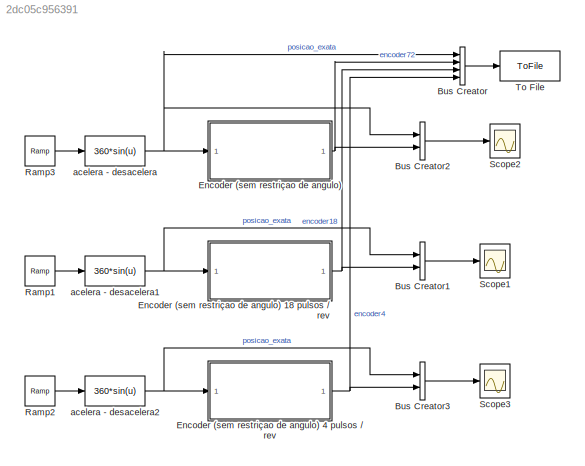
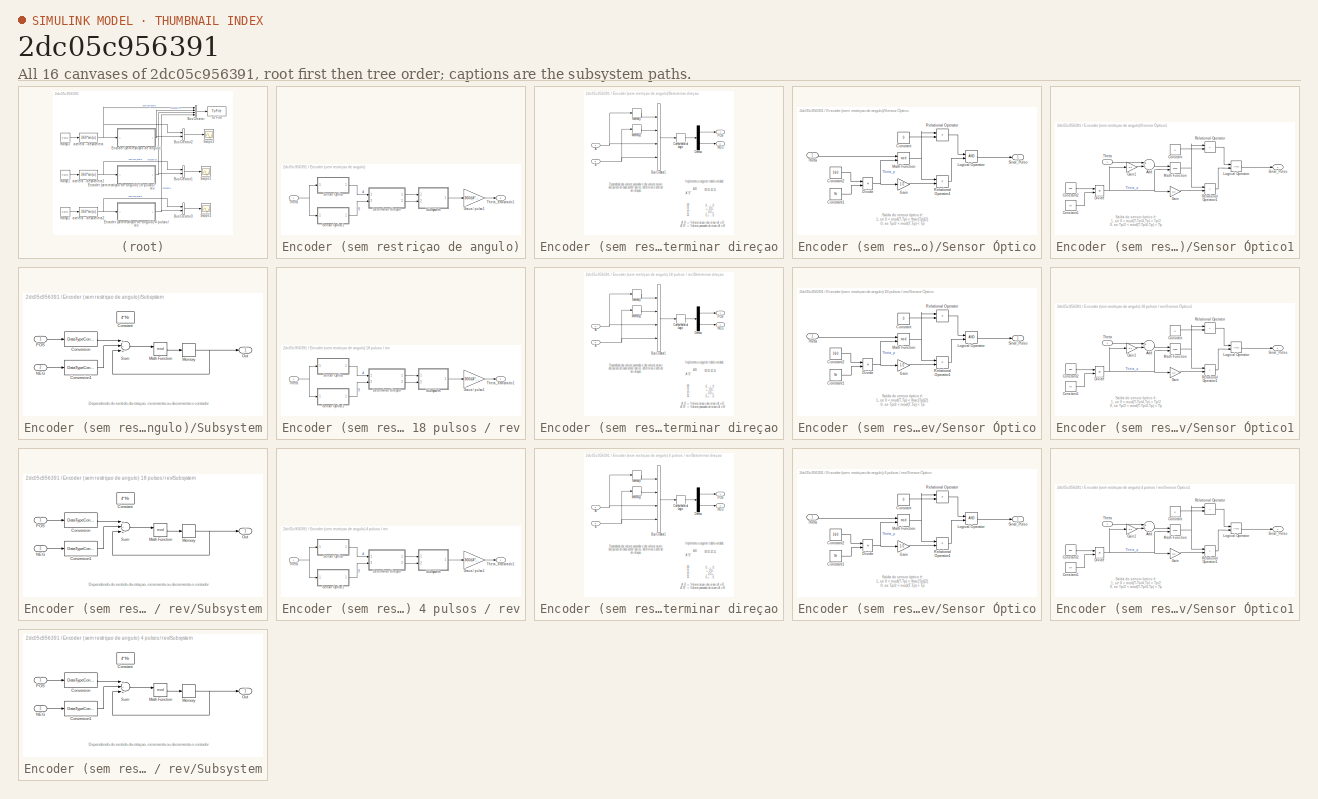
[diagram: thumbnail index - all 16 canvases of the model, root first then tree order]
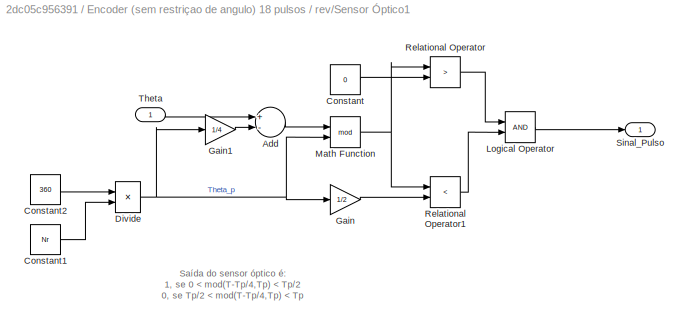
MODEL slx_2dc05c956391
KIND model
BLOCK [BusCreator] Bus Creator
  DisplayOption = bar
  Ports = [4, 1]
BLOCK [BusCreator] Bus Creator1
  DisplayOption = bar
  Inputs = 2
  Ports = [2, 1]
BLOCK [BusCreator] Bus Creator2
  DisplayOption = bar
  Inputs = 2
  Ports = [2, 1]
BLOCK [BusCreator] Bus Creator3
  DisplayOption = bar
  Inputs = 2
  Ports = [2, 1]
BLOCK [SubSystem] Encoder (sem restriçao de angulo)
  FunctionWithSeparateData = off
  MaskHideContents = off
  MinAlgLoopOccurrences = off
  Opaque = off
  Ports = [1, 1]
  PropExecContextOutsideSubsystem = off
  RTWSystemCode = Auto
  RequestExecContextInheritance = off
BLOCK [SubSystem] Encoder (sem restriçao de angulo) 18 pulsos // rev
  FunctionWithSeparateData = off
  MaskHideContents = off
  MinAlgLoopOccurrences = off
  Opaque = off
  Ports = [1, 1]
  PropExecContextOutsideSubsystem = off
  RTWSystemCode = Auto
  RequestExecContextInheritance = off
BLOCK [SubSystem] Encoder (sem restriçao de angulo) 18 pulsos // rev/Determinar direçao
  FunctionWithSeparateData = off
  MaskHideContents = off
  MinAlgLoopOccurrences = off
  Opaque = off
  Ports = [2, 2]
  PropExecContextOutsideSubsystem = off
  RTWSystemCode = Auto
  RequestExecContextInheritance = off
BLOCK [Inport] Encoder (sem restriçao de angulo) 18 pulsos // rev/Determinar direçao/A
  IconDisplay = Port number
BLOCK [Inport] Encoder (sem restriçao de angulo) 18 pulsos // rev/Determinar direçao/B
  IconDisplay = Port number
  Port = 2
BLOCK [BusCreator] Encoder (sem restriçao de angulo) 18 pulsos // rev/Determinar direçao/Bus Creator1
  DisplayOption = bar
  Ports = [4, 1]
BLOCK [CombinatorialLogic] Encoder (sem restriçao de angulo) 18 pulsos // rev/Determinar direçao/Combinatorial  Logic
  TruthTable = [ 0 0 ; 0 1 ; 1 0 ; 0 0 ; 1 0 ; 0 0 ; 0 0 ; 0 1 ; 0 1 ; 0 0 ; 0 0 ; 1 0 ; 0 0 ; 1 0 ; 0 1 ; 0 0]
BLOCK [Demux] Encoder (sem restriçao de angulo) 18 pulsos // rev/Determinar direçao/Demux
  DisplayOption = bar
  Outputs = 2
  Ports = [1, 2]
BLOCK [Memory] Encoder (sem restriçao de angulo) 18 pulsos // rev/Determinar direçao/Memory
BLOCK [Memory] Encoder (sem restriçao de angulo) 18 pulsos // rev/Determinar direçao/Memory1
BLOCK [Outport] Encoder (sem restriçao de angulo) 18 pulsos // rev/Determinar direçao/NEG
  IconDisplay = Port number
  Port = 2
BLOCK [Outport] Encoder (sem restriçao de angulo) 18 pulsos // rev/Determinar direçao/POS
  IconDisplay = Port number
BLOCK [Gain] Encoder (sem restriçao de angulo) 18 pulsos // rev/Graus // pulso1
  Gain = 360/(4*Nr)
  OutDataTypeStr = double
  ParamDataTypeStr = Inherit: Inherit via internal rule
  SaturateOnIntegerOverflow = off
BLOCK [SubSystem] Encoder (sem restriçao de angulo) 18 pulsos // rev/Sensor Óptico
  FunctionWithSeparateData = off
  MaskHideContents = off
  MinAlgLoopOccurrences = off
  Opaque = off
  Ports = [1, 1]
  PropExecContextOutsideSubsystem = off
  RTWSystemCode = Auto
  RequestExecContextInheritance = off
BLOCK [Constant] Encoder (sem restriçao de angulo) 18 pulsos // rev/Sensor Óptico/Constant
  Value = 0
BLOCK [Constant] Encoder (sem restriçao de angulo) 18 pulsos // rev/Sensor Óptico/Constant1
  Value = Nr
BLOCK [Constant] Encoder (sem restriçao de angulo) 18 pulsos // rev/Sensor Óptico/Constant2
  Value = 360
BLOCK [Product] Encoder (sem restriçao de angulo) 18 pulsos // rev/Sensor Óptico/Divide
  InputSameDT = off
  Inputs = */
  OutDataTypeStr = Inherit: Inherit via internal rule
  Ports = [2, 1]
  RndMeth = Floor
  SaturateOnIntegerOverflow = off
BLOCK [Gain] Encoder (sem restriçao de angulo) 18 pulsos // rev/Sensor Óptico/Gain
  Gain = 1/2
  OutDataTypeStr = Inherit: Inherit via internal rule
  ParamDataTypeStr = Inherit: Inherit via internal rule
  SaturateOnIntegerOverflow = off
BLOCK [Logic] Encoder (sem restriçao de angulo) 18 pulsos // rev/Sensor Óptico/Logical Operator
  AllPortsSameDT = off
  OutDataTypeStr = boolean
  Ports = [2, 1]
BLOCK [Math] Encoder (sem restriçao de angulo) 18 pulsos // rev/Sensor Óptico/Math Function
  Operator = mod
  Ports = [2, 1]
BLOCK [RelationalOperator] Encoder (sem restriçao de angulo) 18 pulsos // rev/Sensor Óptico/Relational Operator
  InputSameDT = off
  Operator = >
  OutDataTypeStr = boolean
  Ports = [2, 1]
BLOCK [RelationalOperator] Encoder (sem restriçao de angulo) 18 pulsos // rev/Sensor Óptico/Relational Operator1
  InputSameDT = off
  Operator = <
  OutDataTypeStr = boolean
  Ports = [2, 1]
BLOCK [Outport] Encoder (sem restriçao de angulo) 18 pulsos // rev/Sensor Óptico/Sinal_Pulso
  IconDisplay = Port number
BLOCK [Inport] Encoder (sem restriçao de angulo) 18 pulsos // rev/Sensor Óptico/Theta
  IconDisplay = Port number
BLOCK [SubSystem] Encoder (sem restriçao de angulo) 18 pulsos // rev/Sensor Óptico1
  FunctionWithSeparateData = off
  MaskHideContents = off
  MinAlgLoopOccurrences = off
  Opaque = off
  Ports = [1, 1]
  PropExecContextOutsideSubsystem = off
  RTWSystemCode = Auto
  RequestExecContextInheritance = off
BLOCK [Sum] Encoder (sem restriçao de angulo) 18 pulsos // rev/Sensor Óptico1/Add
  InputSameDT = off
  Inputs = +-
  OutDataTypeStr = Inherit: Inherit via internal rule
  Ports = [2, 1]
  SaturateOnIntegerOverflow = off
BLOCK [Constant] Encoder (sem restriçao de angulo) 18 pulsos // rev/Sensor Óptico1/Constant
  Value = 0
BLOCK [Constant] Encoder (sem restriçao de angulo) 18 pulsos // rev/Sensor Óptico1/Constant1
  Value = Nr
BLOCK [Constant] Encoder (sem restriçao de angulo) 18 pulsos // rev/Sensor Óptico1/Constant2
  Value = 360
BLOCK [Product] Encoder (sem restriçao de angulo) 18 pulsos // rev/Sensor Óptico1/Divide
  InputSameDT = off
  Inputs = */
  OutDataTypeStr = Inherit: Inherit via internal rule
  Ports = [2, 1]
  RndMeth = Floor
  SaturateOnIntegerOverflow = off
BLOCK [Gain] Encoder (sem restriçao de angulo) 18 pulsos // rev/Sensor Óptico1/Gain
  Gain = 1/2
  OutDataTypeStr = Inherit: Inherit via internal rule
  ParamDataTypeStr = Inherit: Inherit via internal rule
  SaturateOnIntegerOverflow = off
BLOCK [Gain] Encoder (sem restriçao de angulo) 18 pulsos // rev/Sensor Óptico1/Gain1
  Gain = 1/4
  OutDataTypeStr = Inherit: Inherit via internal rule
  ParamDataTypeStr = Inherit: Inherit via internal rule
  SaturateOnIntegerOverflow = off
BLOCK [Logic] Encoder (sem restriçao de angulo) 18 pulsos // rev/Sensor Óptico1/Logical Operator
  AllPortsSameDT = off
  OutDataTypeStr = boolean
  Ports = [2, 1]
BLOCK [Math] Encoder (sem restriçao de angulo) 18 pulsos // rev/Sensor Óptico1/Math Function
  Operator = mod
  Ports = [2, 1]
BLOCK [RelationalOperator] Encoder (sem restriçao de angulo) 18 pulsos // rev/Sensor Óptico1/Relational Operator
  InputSameDT = off
  Operator = >
  OutDataTypeStr = boolean
  Ports = [2, 1]
BLOCK [RelationalOperator] Encoder (sem restriçao de angulo) 18 pulsos // rev/Sensor Óptico1/Relational Operator1
  InputSameDT = off
  Operator = <
  OutDataTypeStr = boolean
  Ports = [2, 1]
BLOCK [Outport] Encoder (sem restriçao de angulo) 18 pulsos // rev/Sensor Óptico1/Sinal_Pulso
  IconDisplay = Port number
BLOCK [Inport] Encoder (sem restriçao de angulo) 18 pulsos // rev/Sensor Óptico1/Theta
  IconDisplay = Port number
BLOCK [SubSystem] Encoder (sem restriçao de angulo) 18 pulsos // rev/Subsystem
  FunctionWithSeparateData = off
  MaskHideContents = off
  MinAlgLoopOccurrences = off
  Opaque = off
  Ports = [2, 1]
  PropExecContextOutsideSubsystem = off
  RTWSystemCode = Auto
  RequestExecContextInheritance = off
BLOCK [Constant] Encoder (sem restriçao de angulo) 18 pulsos // rev/Subsystem/Constant
  Value = 4*Nr
BLOCK [DataTypeConversion] Encoder (sem restriçao de angulo) 18 pulsos // rev/Subsystem/Conversion
  OutDataTypeStr = int32
  RndMeth = Floor
  SaturateOnIntegerOverflow = off
BLOCK [DataTypeConversion] Encoder (sem restriçao de angulo) 18 pulsos // rev/Subsystem/Conversion1
  OutDataTypeStr = int32
  RndMeth = Floor
  SaturateOnIntegerOverflow = off
BLOCK [Math] Encoder (sem restriçao de angulo) 18 pulsos // rev/Subsystem/Math Function
  Operator = mod
  Ports = [2, 1]
BLOCK [Memory] Encoder (sem restriçao de angulo) 18 pulsos // rev/Subsystem/Memory
BLOCK [Inport] Encoder (sem restriçao de angulo) 18 pulsos // rev/Subsystem/NEG
  IconDisplay = Port number
  Port = 2
BLOCK [Outport] Encoder (sem restriçao de angulo) 18 pulsos // rev/Subsystem/Out
  IconDisplay = Port number
BLOCK [Inport] Encoder (sem restriçao de angulo) 18 pulsos // rev/Subsystem/POS
  IconDisplay = Port number
BLOCK [Sum] Encoder (sem restriçao de angulo) 18 pulsos // rev/Subsystem/Sum
  InputSameDT = off
  Inputs = +-+
  OutDataTypeStr = Inherit: Inherit via internal rule
  Ports = [3, 1]
  SaturateOnIntegerOverflow = off
BLOCK [Inport] Encoder (sem restriçao de angulo) 18 pulsos // rev/Theta
  IconDisplay = Port number
BLOCK [Outport] Encoder (sem restriçao de angulo) 18 pulsos // rev/Theta_amostrado1
  IconDisplay = Port number
BLOCK [SubSystem] Encoder (sem restriçao de angulo) 4 pulsos // rev
  FunctionWithSeparateData = off
  MaskHideContents = off
  MinAlgLoopOccurrences = off
  Opaque = off
  Ports = [1, 1]
  PropExecContextOutsideSubsystem = off
  RTWSystemCode = Auto
  RequestExecContextInheritance = off
BLOCK [SubSystem] Encoder (sem restriçao de angulo) 4 pulsos // rev/Determinar direçao
  FunctionWithSeparateData = off
  MaskHideContents = off
  MinAlgLoopOccurrences = off
  Opaque = off
  Ports = [2, 2]
  PropExecContextOutsideSubsystem = off
  RTWSystemCode = Auto
  RequestExecContextInheritance = off
BLOCK [Inport] Encoder (sem restriçao de angulo) 4 pulsos // rev/Determinar direçao/A
  IconDisplay = Port number
BLOCK [Inport] Encoder (sem restriçao de angulo) 4 pulsos // rev/Determinar direçao/B
  IconDisplay = Port number
  Port = 2
BLOCK [BusCreator] Encoder (sem restriçao de angulo) 4 pulsos // rev/Determinar direçao/Bus Creator1
  DisplayOption = bar
  Ports = [4, 1]
BLOCK [CombinatorialLogic] Encoder (sem restriçao de angulo) 4 pulsos // rev/Determinar direçao/Combinatorial  Logic
  TruthTable = [ 0 0 ; 0 1 ; 1 0 ; 0 0 ; 1 0 ; 0 0 ; 0 0 ; 0 1 ; 0 1 ; 0 0 ; 0 0 ; 1 0 ; 0 0 ; 1 0 ; 0 1 ; 0 0]
BLOCK [Demux] Encoder (sem restriçao de angulo) 4 pulsos // rev/Determinar direçao/Demux
  DisplayOption = bar
  Outputs = 2
  Ports = [1, 2]
BLOCK [Memory] Encoder (sem restriçao de angulo) 4 pulsos // rev/Determinar direçao/Memory
BLOCK [Memory] Encoder (sem restriçao de angulo) 4 pulsos // rev/Determinar direçao/Memory1
BLOCK [Outport] Encoder (sem restriçao de angulo) 4 pulsos // rev/Determinar direçao/NEG
  IconDisplay = Port number
  Port = 2
BLOCK [Outport] Encoder (sem restriçao de angulo) 4 pulsos // rev/Determinar direçao/POS
  IconDisplay = Port number
BLOCK [Gain] Encoder (sem restriçao de angulo) 4 pulsos // rev/Graus // pulso1
  Gain = 360/(4*Nr)
  OutDataTypeStr = double
  ParamDataTypeStr = Inherit: Inherit via internal rule
  SaturateOnIntegerOverflow = off
BLOCK [SubSystem] Encoder (sem restriçao de angulo) 4 pulsos // rev/Sensor Óptico
  FunctionWithSeparateData = off
  MaskHideContents = off
  MinAlgLoopOccurrences = off
  Opaque = off
  Ports = [1, 1]
  PropExecContextOutsideSubsystem = off
  RTWSystemCode = Auto
  RequestExecContextInheritance = off
BLOCK [Constant] Encoder (sem restriçao de angulo) 4 pulsos // rev/Sensor Óptico/Constant
  Value = 0
BLOCK [Constant] Encoder (sem restriçao de angulo) 4 pulsos // rev/Sensor Óptico/Constant1
  Value = Nr
BLOCK [Constant] Encoder (sem restriçao de angulo) 4 pulsos // rev/Sensor Óptico/Constant2
  Value = 360
BLOCK [Product] Encoder (sem restriçao de angulo) 4 pulsos // rev/Sensor Óptico/Divide
  InputSameDT = off
  Inputs = */
  OutDataTypeStr = Inherit: Inherit via internal rule
  Ports = [2, 1]
  RndMeth = Floor
  SaturateOnIntegerOverflow = off
BLOCK [Gain] Encoder (sem restriçao de angulo) 4 pulsos // rev/Sensor Óptico/Gain
  Gain = 1/2
  OutDataTypeStr = Inherit: Inherit via internal rule
  ParamDataTypeStr = Inherit: Inherit via internal rule
  SaturateOnIntegerOverflow = off
BLOCK [Logic] Encoder (sem restriçao de angulo) 4 pulsos // rev/Sensor Óptico/Logical Operator
  AllPortsSameDT = off
  OutDataTypeStr = boolean
  Ports = [2, 1]
BLOCK [Math] Encoder (sem restriçao de angulo) 4 pulsos // rev/Sensor Óptico/Math Function
  Operator = mod
  Ports = [2, 1]
BLOCK [RelationalOperator] Encoder (sem restriçao de angulo) 4 pulsos // rev/Sensor Óptico/Relational Operator
  InputSameDT = off
  Operator = >
  OutDataTypeStr = boolean
  Ports = [2, 1]
BLOCK [RelationalOperator] Encoder (sem restriçao de angulo) 4 pulsos // rev/Sensor Óptico/Relational Operator1
  InputSameDT = off
  Operator = <
  OutDataTypeStr = boolean
  Ports = [2, 1]
BLOCK [Outport] Encoder (sem restriçao de angulo) 4 pulsos // rev/Sensor Óptico/Sinal_Pulso
  IconDisplay = Port number
BLOCK [Inport] Encoder (sem restriçao de angulo) 4 pulsos // rev/Sensor Óptico/Theta
  IconDisplay = Port number
BLOCK [SubSystem] Encoder (sem restriçao de angulo) 4 pulsos // rev/Sensor Óptico1
  FunctionWithSeparateData = off
  MaskHideContents = off
  MinAlgLoopOccurrences = off
  Opaque = off
  Ports = [1, 1]
  PropExecContextOutsideSubsystem = off
  RTWSystemCode = Auto
  RequestExecContextInheritance = off
BLOCK [Sum] Encoder (sem restriçao de angulo) 4 pulsos // rev/Sensor Óptico1/Add
  InputSameDT = off
  Inputs = +-
  OutDataTypeStr = Inherit: Inherit via internal rule
  Ports = [2, 1]
  SaturateOnIntegerOverflow = off
BLOCK [Constant] Encoder (sem restriçao de angulo) 4 pulsos // rev/Sensor Óptico1/Constant
  Value = 0
BLOCK [Constant] Encoder (sem restriçao de angulo) 4 pulsos // rev/Sensor Óptico1/Constant1
  Value = Nr
BLOCK [Constant] Encoder (sem restriçao de angulo) 4 pulsos // rev/Sensor Óptico1/Constant2
  Value = 360
BLOCK [Product] Encoder (sem restriçao de angulo) 4 pulsos // rev/Sensor Óptico1/Divide
  InputSameDT = off
  Inputs = */
  OutDataTypeStr = Inherit: Inherit via internal rule
  Ports = [2, 1]
  RndMeth = Floor
  SaturateOnIntegerOverflow = off
BLOCK [Gain] Encoder (sem restriçao de angulo) 4 pulsos // rev/Sensor Óptico1/Gain
  Gain = 1/2
  OutDataTypeStr = Inherit: Inherit via internal rule
  ParamDataTypeStr = Inherit: Inherit via internal rule
  SaturateOnIntegerOverflow = off
BLOCK [Gain] Encoder (sem restriçao de angulo) 4 pulsos // rev/Sensor Óptico1/Gain1
  Gain = 1/4
  OutDataTypeStr = Inherit: Inherit via internal rule
  ParamDataTypeStr = Inherit: Inherit via internal rule
  SaturateOnIntegerOverflow = off
BLOCK [Logic] Encoder (sem restriçao de angulo) 4 pulsos // rev/Sensor Óptico1/Logical Operator
  AllPortsSameDT = off
  OutDataTypeStr = boolean
  Ports = [2, 1]
BLOCK [Math] Encoder (sem restriçao de angulo) 4 pulsos // rev/Sensor Óptico1/Math Function
  Operator = mod
  Ports = [2, 1]
BLOCK [RelationalOperator] Encoder (sem restriçao de angulo) 4 pulsos // rev/Sensor Óptico1/Relational Operator
  InputSameDT = off
  Operator = >
  OutDataTypeStr = boolean
  Ports = [2, 1]
BLOCK [RelationalOperator] Encoder (sem restriçao de angulo) 4 pulsos // rev/Sensor Óptico1/Relational Operator1
  InputSameDT = off
  Operator = <
  OutDataTypeStr = boolean
  Ports = [2, 1]
BLOCK [Outport] Encoder (sem restriçao de angulo) 4 pulsos // rev/Sensor Óptico1/Sinal_Pulso
  IconDisplay = Port number
BLOCK [Inport] Encoder (sem restriçao de angulo) 4 pulsos // rev/Sensor Óptico1/Theta
  IconDisplay = Port number
BLOCK [SubSystem] Encoder (sem restriçao de angulo) 4 pulsos // rev/Subsystem
  FunctionWithSeparateData = off
  MaskHideContents = off
  MinAlgLoopOccurrences = off
  Opaque = off
  Ports = [2, 1]
  PropExecContextOutsideSubsystem = off
  RTWSystemCode = Auto
  RequestExecContextInheritance = off
BLOCK [Constant] Encoder (sem restriçao de angulo) 4 pulsos // rev/Subsystem/Constant
  Value = 4*Nr
BLOCK [DataTypeConversion] Encoder (sem restriçao de angulo) 4 pulsos // rev/Subsystem/Conversion
  OutDataTypeStr = int32
  RndMeth = Floor
  SaturateOnIntegerOverflow = off
BLOCK [DataTypeConversion] Encoder (sem restriçao de angulo) 4 pulsos // rev/Subsystem/Conversion1
  OutDataTypeStr = int32
  RndMeth = Floor
  SaturateOnIntegerOverflow = off
BLOCK [Math] Encoder (sem restriçao de angulo) 4 pulsos // rev/Subsystem/Math Function
  Operator = mod
  Ports = [2, 1]
BLOCK [Memory] Encoder (sem restriçao de angulo) 4 pulsos // rev/Subsystem/Memory
BLOCK [Inport] Encoder (sem restriçao de angulo) 4 pulsos // rev/Subsystem/NEG
  IconDisplay = Port number
  Port = 2
BLOCK [Outport] Encoder (sem restriçao de angulo) 4 pulsos // rev/Subsystem/Out
  IconDisplay = Port number
BLOCK [Inport] Encoder (sem restriçao de angulo) 4 pulsos // rev/Subsystem/POS
  IconDisplay = Port number
BLOCK [Sum] Encoder (sem restriçao de angulo) 4 pulsos // rev/Subsystem/Sum
  InputSameDT = off
  Inputs = +-+
  OutDataTypeStr = Inherit: Inherit via internal rule
  Ports = [3, 1]
  SaturateOnIntegerOverflow = off
BLOCK [Inport] Encoder (sem restriçao de angulo) 4 pulsos // rev/Theta
  IconDisplay = Port number
BLOCK [Outport] Encoder (sem restriçao de angulo) 4 pulsos // rev/Theta_amostrado1
  IconDisplay = Port number
BLOCK [SubSystem] Encoder (sem restriçao de angulo)/Determinar direçao
  FunctionWithSeparateData = off
  MaskHideContents = off
  MinAlgLoopOccurrences = off
  Opaque = off
  Ports = [2, 2]
  PropExecContextOutsideSubsystem = off
  RTWSystemCode = Auto
  RequestExecContextInheritance = off
BLOCK [Inport] Encoder (sem restriçao de angulo)/Determinar direçao/A
  IconDisplay = Port number
BLOCK [Inport] Encoder (sem restriçao de angulo)/Determinar direçao/B
  IconDisplay = Port number
  Port = 2
BLOCK [BusCreator] Encoder (sem restriçao de angulo)/Determinar direçao/Bus Creator1
  DisplayOption = bar
  Ports = [4, 1]
BLOCK [CombinatorialLogic] Encoder (sem restriçao de angulo)/Determinar direçao/Combinatorial  Logic
  TruthTable = [ 0 0 ; 0 1 ; 1 0 ; 0 0 ; 1 0 ; 0 0 ; 0 0 ; 0 1 ; 0 1 ; 0 0 ; 0 0 ; 1 0 ; 0 0 ; 1 0 ; 0 1 ; 0 0]
BLOCK [Demux] Encoder (sem restriçao de angulo)/Determinar direçao/Demux
  DisplayOption = bar
  Outputs = 2
  Ports = [1, 2]
BLOCK [Memory] Encoder (sem restriçao de angulo)/Determinar direçao/Memory
BLOCK [Memory] Encoder (sem restriçao de angulo)/Determinar direçao/Memory1
BLOCK [Outport] Encoder (sem restriçao de angulo)/Determinar direçao/NEG
  IconDisplay = Port number
  Port = 2
BLOCK [Outport] Encoder (sem restriçao de angulo)/Determinar direçao/POS
  IconDisplay = Port number
BLOCK [Gain] Encoder (sem restriçao de angulo)/Graus // pulso1
  Gain = 360/(4*Nr)
  OutDataTypeStr = double
  ParamDataTypeStr = Inherit: Inherit via internal rule
  SaturateOnIntegerOverflow = off
BLOCK [SubSystem] Encoder (sem restriçao de angulo)/Sensor Óptico
  FunctionWithSeparateData = off
  MaskHideContents = off
  MinAlgLoopOccurrences = off
  Opaque = off
  Ports = [1, 1]
  PropExecContextOutsideSubsystem = off
  RTWSystemCode = Auto
  RequestExecContextInheritance = off
BLOCK [Constant] Encoder (sem restriçao de angulo)/Sensor Óptico/Constant
  Value = 0
BLOCK [Constant] Encoder (sem restriçao de angulo)/Sensor Óptico/Constant1
  Value = Nr
BLOCK [Constant] Encoder (sem restriçao de angulo)/Sensor Óptico/Constant2
  Value = 360
BLOCK [Product] Encoder (sem restriçao de angulo)/Sensor Óptico/Divide
  InputSameDT = off
  Inputs = */
  OutDataTypeStr = Inherit: Inherit via internal rule
  Ports = [2, 1]
  RndMeth = Floor
  SaturateOnIntegerOverflow = off
BLOCK [Gain] Encoder (sem restriçao de angulo)/Sensor Óptico/Gain
  Gain = 1/2
  OutDataTypeStr = Inherit: Inherit via internal rule
  ParamDataTypeStr = Inherit: Inherit via internal rule
  SaturateOnIntegerOverflow = off
BLOCK [Logic] Encoder (sem restriçao de angulo)/Sensor Óptico/Logical Operator
  AllPortsSameDT = off
  OutDataTypeStr = boolean
  Ports = [2, 1]
BLOCK [Math] Encoder (sem restriçao de angulo)/Sensor Óptico/Math Function
  Operator = mod
  Ports = [2, 1]
BLOCK [RelationalOperator] Encoder (sem restriçao de angulo)/Sensor Óptico/Relational Operator
  InputSameDT = off
  Operator = >
  OutDataTypeStr = boolean
  Ports = [2, 1]
BLOCK [RelationalOperator] Encoder (sem restriçao de angulo)/Sensor Óptico/Relational Operator1
  InputSameDT = off
  Operator = <
  OutDataTypeStr = boolean
  Ports = [2, 1]
BLOCK [Outport] Encoder (sem restriçao de angulo)/Sensor Óptico/Sinal_Pulso
  IconDisplay = Port number
BLOCK [Inport] Encoder (sem restriçao de angulo)/Sensor Óptico/Theta
  IconDisplay = Port number
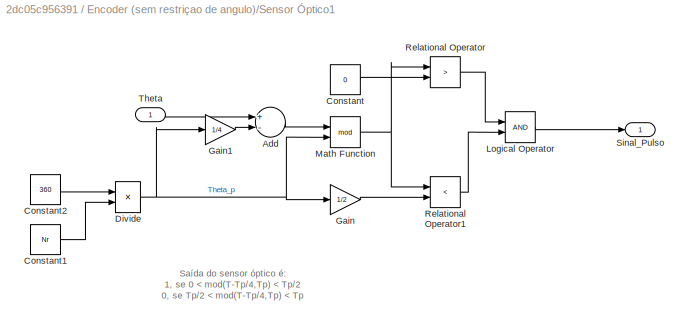
BLOCK [SubSystem] Encoder (sem restriçao de angulo)/Sensor Óptico1
  FunctionWithSeparateData = off
  MaskHideContents = off
  MinAlgLoopOccurrences = off
  Opaque = off
  Ports = [1, 1]
  PropExecContextOutsideSubsystem = off
  RTWSystemCode = Auto
  RequestExecContextInheritance = off
BLOCK [Sum] Encoder (sem restriçao de angulo)/Sensor Óptico1/Add
  InputSameDT = off
  Inputs = +-
  OutDataTypeStr = Inherit: Inherit via internal rule
  Ports = [2, 1]
  SaturateOnIntegerOverflow = off
BLOCK [Constant] Encoder (sem restriçao de angulo)/Sensor Óptico1/Constant
  Value = 0
BLOCK [Constant] Encoder (sem restriçao de angulo)/Sensor Óptico1/Constant1
  Value = Nr
BLOCK [Constant] Encoder (sem restriçao de angulo)/Sensor Óptico1/Constant2
  Value = 360
BLOCK [Product] Encoder (sem restriçao de angulo)/Sensor Óptico1/Divide
  InputSameDT = off
  Inputs = */
  OutDataTypeStr = Inherit: Inherit via internal rule
  Ports = [2, 1]
  RndMeth = Floor
  SaturateOnIntegerOverflow = off
BLOCK [Gain] Encoder (sem restriçao de angulo)/Sensor Óptico1/Gain
  Gain = 1/2
  OutDataTypeStr = Inherit: Inherit via internal rule
  ParamDataTypeStr = Inherit: Inherit via internal rule
  SaturateOnIntegerOverflow = off
BLOCK [Gain] Encoder (sem restriçao de angulo)/Sensor Óptico1/Gain1
  Gain = 1/4
  OutDataTypeStr = Inherit: Inherit via internal rule
  ParamDataTypeStr = Inherit: Inherit via internal rule
  SaturateOnIntegerOverflow = off
BLOCK [Logic] Encoder (sem restriçao de angulo)/Sensor Óptico1/Logical Operator
  AllPortsSameDT = off
  OutDataTypeStr = boolean
  Ports = [2, 1]
BLOCK [Math] Encoder (sem restriçao de angulo)/Sensor Óptico1/Math Function
  Operator = mod
  Ports = [2, 1]
BLOCK [RelationalOperator] Encoder (sem restriçao de angulo)/Sensor Óptico1/Relational Operator
  InputSameDT = off
  Operator = >
  OutDataTypeStr = boolean
  Ports = [2, 1]
BLOCK [RelationalOperator] Encoder (sem restriçao de angulo)/Sensor Óptico1/Relational Operator1
  InputSameDT = off
  Operator = <
  OutDataTypeStr = boolean
  Ports = [2, 1]
BLOCK [Outport] Encoder (sem restriçao de angulo)/Sensor Óptico1/Sinal_Pulso
  IconDisplay = Port number
BLOCK [Inport] Encoder (sem restriçao de angulo)/Sensor Óptico1/Theta
  IconDisplay = Port number
BLOCK [SubSystem] Encoder (sem restriçao de angulo)/Subsystem
  FunctionWithSeparateData = off
  MaskHideContents = off
  MinAlgLoopOccurrences = off
  Opaque = off
  Ports = [2, 1]
  PropExecContextOutsideSubsystem = off
  RTWSystemCode = Auto
  RequestExecContextInheritance = off
BLOCK [Constant] Encoder (sem restriçao de angulo)/Subsystem/Constant
  Value = 4*Nr
BLOCK [DataTypeConversion] Encoder (sem restriçao de angulo)/Subsystem/Conversion
  OutDataTypeStr = int32
  RndMeth = Floor
  SaturateOnIntegerOverflow = off
BLOCK [DataTypeConversion] Encoder (sem restriçao de angulo)/Subsystem/Conversion1
  OutDataTypeStr = int32
  RndMeth = Floor
  SaturateOnIntegerOverflow = off
BLOCK [Math] Encoder (sem restriçao de angulo)/Subsystem/Math Function
  Operator = mod
  Ports = [2, 1]
BLOCK [Memory] Encoder (sem restriçao de angulo)/Subsystem/Memory
BLOCK [Inport] Encoder (sem restriçao de angulo)/Subsystem/NEG
  IconDisplay = Port number
  Port = 2
BLOCK [Outport] Encoder (sem restriçao de angulo)/Subsystem/Out
  IconDisplay = Port number
BLOCK [Inport] Encoder (sem restriçao de angulo)/Subsystem/POS
  IconDisplay = Port number
BLOCK [Sum] Encoder (sem restriçao de angulo)/Subsystem/Sum
  InputSameDT = off
  Inputs = +-+
  OutDataTypeStr = Inherit: Inherit via internal rule
  Ports = [3, 1]
  SaturateOnIntegerOverflow = off
BLOCK [Inport] Encoder (sem restriçao de angulo)/Theta
  IconDisplay = Port number
BLOCK [Outport] Encoder (sem restriçao de angulo)/Theta_amostrado1
  IconDisplay = Port number
BLOCK [Reference] Ramp1  REF=simulink/Sources/Ramp
  Ports = [0, 1]
  SourceBlock = simulink/Sources/Ramp
  SourceType = Ramp
  VectorParams1D = on
  X0 = 0
  slope = 2*pi
  start = 0
BLOCK [Reference] Ramp2  REF=simulink/Sources/Ramp
  Ports = [0, 1]
  SourceBlock = simulink/Sources/Ramp
  SourceType = Ramp
  VectorParams1D = on
  X0 = 0
  slope = 2*pi
  start = 0
BLOCK [Reference] Ramp3  REF=simulink/Sources/Ramp
  Ports = [0, 1]
  SourceBlock = simulink/Sources/Ramp
  SourceType = Ramp
  VectorParams1D = on
  X0 = 0
  slope = 2*pi
  start = 0
BLOCK [Scope] Scope1
  DataFormat = StructureWithTime
  Floating = off
  LegendLocations = 0.79054     0.90797     0.17073    0.045283
  LimitDataPoints = off
  NumInputPorts = 1
  Ports = [1]
  SampleTime = 0
  SaveName = ScopeData1
  ShowLegends = on
  YMax = 575
  YMin = 150
  ZoomMode = yonly
BLOCK [Scope] Scope2
  DataFormat = StructureWithTime
  Floating = off
  LegendLocations = 0.85595     0.90797     0.12559    0.045283
  LimitDataPoints = off
  NumInputPorts = 1
  Ports = [1]
  SampleTime = 0
  ShowLegends = on
  YMax = 125
  YMin = -375
  ZoomMode = yonly
BLOCK [Scope] Scope3
  DataFormat = StructureWithTime
  Floating = off
  LegendLocations = 0.59029     0.90797     0.17073    0.045283
  LimitDataPoints = off
  NumInputPorts = 1
  Ports = [1]
  SampleTime = 0
  SaveName = ScopeData2
  ShowLegends = on
  YMax = 250
  YMin = -400
  ZoomMode = yonly
BLOCK [ToFile] To File
  Filename = resultados_testes_encoder.mat
  MatrixName = resultados
  Ports = [1]
  SaveFormat = Timeseries
BLOCK [Fcn] acelera - desacelera
  Expr = 360*sin(u)
BLOCK [Fcn] acelera - desacelera1
  Expr = 360*sin(u)
BLOCK [Fcn] acelera - desacelera2
  Expr = 360*sin(u)
ANNOTATION Encoder (sem restriçao de angulo) 18 pulsos // rev/Determinar direçao: 0 - + 0 + 0 0 - - 0 0 + 0 + - 0
ANNOTATION Encoder (sem restriçao de angulo) 18 pulsos // rev/Determinar direçao: 00 01 10 11
ANNOTATION Encoder (sem restriçao de angulo) 18 pulsos // rev/Determinar direçao: A'B'
ANNOTATION Encoder (sem restriçao de angulo) 18 pulsos // rev/Determinar direçao: A,B = Valores atuais dos sinais A e B A'B' = Valores passados do sinais A e B
ANNOTATION Encoder (sem restriçao de angulo) 18 pulsos // rev/Determinar direçao: AB
ANNOTATION Encoder (sem restriçao de angulo) 18 pulsos // rev/Determinar direçao: Dependendo dos valores passados e dos valores atuais dos pulsos de cada sensor óptico, determina o sentido de rotaçao.
ANNOTATION Encoder (sem restriçao de angulo) 18 pulsos // rev/Determinar direçao: Implementa a seguinte tabela verdade:
ANNOTATION Encoder (sem restriçao de angulo) 18 pulsos // rev/Sensor Óptico: Saída do sensor óptico é: 1, se 0 < mod(T,Tp) < \frac{Tp}{2} 0, se Tp/2 < mod(T,Tp) < Tp
ANNOTATION Encoder (sem restriçao de angulo) 18 pulsos // rev/Sensor Óptico1: Saída do sensor óptico é: 1, se 0 < mod(T-Tp/4,Tp) < Tp/2 0, se Tp/2 < mod(T-Tp/4,Tp) < Tp
ANNOTATION Encoder (sem restriçao de angulo) 18 pulsos // rev/Subsystem: Dependendo do sentido da rotaçao, incrementa ou decrementa o contador
ANNOTATION Encoder (sem restriçao de angulo) 4 pulsos // rev/Determinar direçao: 0 - + 0 + 0 0 - - 0 0 + 0 + - 0
ANNOTATION Encoder (sem restriçao de angulo) 4 pulsos // rev/Determinar direçao: 00 01 10 11
ANNOTATION Encoder (sem restriçao de angulo) 4 pulsos // rev/Determinar direçao: A'B'
ANNOTATION Encoder (sem restriçao de angulo) 4 pulsos // rev/Determinar direçao: A,B = Valores atuais dos sinais A e B A'B' = Valores passados do sinais A e B
ANNOTATION Encoder (sem restriçao de angulo) 4 pulsos // rev/Determinar direçao: AB
ANNOTATION Encoder (sem restriçao de angulo) 4 pulsos // rev/Determinar direçao: Dependendo dos valores passados e dos valores atuais dos pulsos de cada sensor óptico, determina o sentido de rotaçao.
ANNOTATION Encoder (sem restriçao de angulo) 4 pulsos // rev/Determinar direçao: Implementa a seguinte tabela verdade:
ANNOTATION Encoder (sem restriçao de angulo) 4 pulsos // rev/Sensor Óptico: Saída do sensor óptico é: 1, se 0 < mod(T,Tp) < \frac{Tp}{2} 0, se Tp/2 < mod(T,Tp) < Tp
ANNOTATION Encoder (sem restriçao de angulo) 4 pulsos // rev/Sensor Óptico1: Saída do sensor óptico é: 1, se 0 < mod(T-Tp/4,Tp) < Tp/2 0, se Tp/2 < mod(T-Tp/4,Tp) < Tp
ANNOTATION Encoder (sem restriçao de angulo) 4 pulsos // rev/Subsystem: Dependendo do sentido da rotaçao, incrementa ou decrementa o contador
ANNOTATION Encoder (sem restriçao de angulo)/Determinar direçao: 0 - + 0 + 0 0 - - 0 0 + 0 + - 0
ANNOTATION Encoder (sem restriçao de angulo)/Determinar direçao: 00 01 10 11
ANNOTATION Encoder (sem restriçao de angulo)/Determinar direçao: A'B'
ANNOTATION Encoder (sem restriçao de angulo)/Determinar direçao: A,B = Valores atuais dos sinais A e B A'B' = Valores passados do sinais A e B
ANNOTATION Encoder (sem restriçao de angulo)/Determinar direçao: AB
ANNOTATION Encoder (sem restriçao de angulo)/Determinar direçao: Dependendo dos valores passados e dos valores atuais dos pulsos de cada sensor óptico, determina o sentido de rotaçao.
ANNOTATION Encoder (sem restriçao de angulo)/Determinar direçao: Implementa a seguinte tabela verdade:
ANNOTATION Encoder (sem restriçao de angulo)/Sensor Óptico: Saída do sensor óptico é: 1, se 0 < mod(T,Tp) < \frac{Tp}{2} 0, se Tp/2 < mod(T,Tp) < Tp
ANNOTATION Encoder (sem restriçao de angulo)/Sensor Óptico1: Saída do sensor óptico é: 1, se 0 < mod(T-Tp/4,Tp) < Tp/2 0, se Tp/2 < mod(T-Tp/4,Tp) < Tp
ANNOTATION Encoder (sem restriçao de angulo)/Subsystem: Dependendo do sentido da rotaçao, incrementa ou decrementa o contador
LINE Bus Creator1:1 -> Scope1:1
LINE Bus Creator2:1 -> Scope2:1
LINE Bus Creator3:1 -> Scope3:1
LINE Bus Creator:1 -> To File:1
NET Encoder (sem restriçao de angulo) 18 pulsos // rev/Determinar direçao/A:1 -> Encoder (sem restriçao de angulo) 18 pulsos // rev/Determinar direçao/Bus Creator1:3, Encoder (sem restriçao de angulo) 18 pulsos // rev/Determinar direçao/Memory:1
NET Encoder (sem restriçao de angulo) 18 pulsos // rev/Determinar direçao/B:1 -> Encoder (sem restriçao de angulo) 18 pulsos // rev/Determinar direçao/Bus Creator1:4, Encoder (sem restriçao de angulo) 18 pulsos // rev/Determinar direçao/Memory1:1
LINE Encoder (sem restriçao de angulo) 18 pulsos // rev/Determinar direçao/Bus Creator1:1 -> Encoder (sem restriçao de angulo) 18 pulsos // rev/Determinar direçao/Combinatorial  Logic:1
LINE Encoder (sem restriçao de angulo) 18 pulsos // rev/Determinar direçao/Combinatorial  Logic:1 -> Encoder (sem restriçao de angulo) 18 pulsos // rev/Determinar direçao/Demux:1
LINE Encoder (sem restriçao de angulo) 18 pulsos // rev/Determinar direçao/Demux:1 -> Encoder (sem restriçao de angulo) 18 pulsos // rev/Determinar direçao/POS:1
LINE Encoder (sem restriçao de angulo) 18 pulsos // rev/Determinar direçao/Demux:2 -> Encoder (sem restriçao de angulo) 18 pulsos // rev/Determinar direçao/NEG:1
LINE Encoder (sem restriçao de angulo) 18 pulsos // rev/Determinar direçao/Memory1:1 -> Encoder (sem restriçao de angulo) 18 pulsos // rev/Determinar direçao/Bus Creator1:2
LINE Encoder (sem restriçao de angulo) 18 pulsos // rev/Determinar direçao/Memory:1 -> Encoder (sem restriçao de angulo) 18 pulsos // rev/Determinar direçao/Bus Creator1:1
LINE Encoder (sem restriçao de angulo) 18 pulsos // rev/Determinar direçao:1 -> Encoder (sem restriçao de angulo) 18 pulsos // rev/Subsystem:1
LINE Encoder (sem restriçao de angulo) 18 pulsos // rev/Determinar direçao:2 -> Encoder (sem restriçao de angulo) 18 pulsos // rev/Subsystem:2
LINE Encoder (sem restriçao de angulo) 18 pulsos // rev/Graus // pulso1:1 -> Encoder (sem restriçao de angulo) 18 pulsos // rev/Theta_amostrado1:1
LINE Encoder (sem restriçao de angulo) 18 pulsos // rev/Sensor Óptico/Constant1:1 -> Encoder (sem restriçao de angulo) 18 pulsos // rev/Sensor Óptico/Divide:2
LINE Encoder (sem restriçao de angulo) 18 pulsos // rev/Sensor Óptico/Constant2:1 -> Encoder (sem restriçao de angulo) 18 pulsos // rev/Sensor Óptico/Divide:1
LINE Encoder (sem restriçao de angulo) 18 pulsos // rev/Sensor Óptico/Constant:1 -> Encoder (sem restriçao de angulo) 18 pulsos // rev/Sensor Óptico/Relational Operator:2
NET Encoder (sem restriçao de angulo) 18 pulsos // rev/Sensor Óptico/Divide:1 -> Encoder (sem restriçao de angulo) 18 pulsos // rev/Sensor Óptico/Gain:1, Encoder (sem restriçao de angulo) 18 pulsos // rev/Sensor Óptico/Math Function:2
LINE Encoder (sem restriçao de angulo) 18 pulsos // rev/Sensor Óptico/Gain:1 -> Encoder (sem restriçao de angulo) 18 pulsos // rev/Sensor Óptico/Relational Operator1:2
LINE Encoder (sem restriçao de angulo) 18 pulsos // rev/Sensor Óptico/Logical Operator:1 -> Encoder (sem restriçao de angulo) 18 pulsos // rev/Sensor Óptico/Sinal_Pulso:1
NET Encoder (sem restriçao de angulo) 18 pulsos // rev/Sensor Óptico/Math Function:1 -> Encoder (sem restriçao de angulo) 18 pulsos // rev/Sensor Óptico/Relational Operator1:1, Encoder (sem restriçao de angulo) 18 pulsos // rev/Sensor Óptico/Relational Operator:1
LINE Encoder (sem restriçao de angulo) 18 pulsos // rev/Sensor Óptico/Relational Operator1:1 -> Encoder (sem restriçao de angulo) 18 pulsos // rev/Sensor Óptico/Logical Operator:2
LINE Encoder (sem restriçao de angulo) 18 pulsos // rev/Sensor Óptico/Relational Operator:1 -> Encoder (sem restriçao de angulo) 18 pulsos // rev/Sensor Óptico/Logical Operator:1
LINE Encoder (sem restriçao de angulo) 18 pulsos // rev/Sensor Óptico/Theta:1 -> Encoder (sem restriçao de angulo) 18 pulsos // rev/Sensor Óptico/Math Function:1
LINE Encoder (sem restriçao de angulo) 18 pulsos // rev/Sensor Óptico1/Add:1 -> Encoder (sem restriçao de angulo) 18 pulsos // rev/Sensor Óptico1/Math Function:1
LINE Encoder (sem restriçao de angulo) 18 pulsos // rev/Sensor Óptico1/Constant1:1 -> Encoder (sem restriçao de angulo) 18 pulsos // rev/Sensor Óptico1/Divide:2
LINE Encoder (sem restriçao de angulo) 18 pulsos // rev/Sensor Óptico1/Constant2:1 -> Encoder (sem restriçao de angulo) 18 pulsos // rev/Sensor Óptico1/Divide:1
LINE Encoder (sem restriçao de angulo) 18 pulsos // rev/Sensor Óptico1/Constant:1 -> Encoder (sem restriçao de angulo) 18 pulsos // rev/Sensor Óptico1/Relational Operator:2
NET Encoder (sem restriçao de angulo) 18 pulsos // rev/Sensor Óptico1/Divide:1 -> Encoder (sem restriçao de angulo) 18 pulsos // rev/Sensor Óptico1/Gain1:1, Encoder (sem restriçao de angulo) 18 pulsos // rev/Sensor Óptico1/Gain:1, Encoder (sem restriçao de angulo) 18 pulsos // rev/Sensor Óptico1/Math Function:2
LINE Encoder (sem restriçao de angulo) 18 pulsos // rev/Sensor Óptico1/Gain1:1 -> Encoder (sem restriçao de angulo) 18 pulsos // rev/Sensor Óptico1/Add:2
LINE Encoder (sem restriçao de angulo) 18 pulsos // rev/Sensor Óptico1/Gain:1 -> Encoder (sem restriçao de angulo) 18 pulsos // rev/Sensor Óptico1/Relational Operator1:2
LINE Encoder (sem restriçao de angulo) 18 pulsos // rev/Sensor Óptico1/Logical Operator:1 -> Encoder (sem restriçao de angulo) 18 pulsos // rev/Sensor Óptico1/Sinal_Pulso:1
NET Encoder (sem restriçao de angulo) 18 pulsos // rev/Sensor Óptico1/Math Function:1 -> Encoder (sem restriçao de angulo) 18 pulsos // rev/Sensor Óptico1/Relational Operator1:1, Encoder (sem restriçao de angulo) 18 pulsos // rev/Sensor Óptico1/Relational Operator:1
LINE Encoder (sem restriçao de angulo) 18 pulsos // rev/Sensor Óptico1/Relational Operator1:1 -> Encoder (sem restriçao de angulo) 18 pulsos // rev/Sensor Óptico1/Logical Operator:2
LINE Encoder (sem restriçao de angulo) 18 pulsos // rev/Sensor Óptico1/Relational Operator:1 -> Encoder (sem restriçao de angulo) 18 pulsos // rev/Sensor Óptico1/Logical Operator:1
LINE Encoder (sem restriçao de angulo) 18 pulsos // rev/Sensor Óptico1/Theta:1 -> Encoder (sem restriçao de angulo) 18 pulsos // rev/Sensor Óptico1/Add:1
LINE Encoder (sem restriçao de angulo) 18 pulsos // rev/Sensor Óptico1:1 -> Encoder (sem restriçao de angulo) 18 pulsos // rev/Determinar direçao:2
LINE Encoder (sem restriçao de angulo) 18 pulsos // rev/Sensor Óptico:1 -> Encoder (sem restriçao de angulo) 18 pulsos // rev/Determinar direçao:1
LINE Encoder (sem restriçao de angulo) 18 pulsos // rev/Subsystem/Conversion1:1 -> Encoder (sem restriçao de angulo) 18 pulsos // rev/Subsystem/Sum:2
LINE Encoder (sem restriçao de angulo) 18 pulsos // rev/Subsystem/Conversion:1 -> Encoder (sem restriçao de angulo) 18 pulsos // rev/Subsystem/Sum:1
LINE Encoder (sem restriçao de angulo) 18 pulsos // rev/Subsystem/Math Function:1 -> Encoder (sem restriçao de angulo) 18 pulsos // rev/Subsystem/Memory:1
NET Encoder (sem restriçao de angulo) 18 pulsos // rev/Subsystem/Memory:1 -> Encoder (sem restriçao de angulo) 18 pulsos // rev/Subsystem/Out:1, Encoder (sem restriçao de angulo) 18 pulsos // rev/Subsystem/Sum:3
LINE Encoder (sem restriçao de angulo) 18 pulsos // rev/Subsystem/NEG:1 -> Encoder (sem restriçao de angulo) 18 pulsos // rev/Subsystem/Conversion1:1
LINE Encoder (sem restriçao de angulo) 18 pulsos // rev/Subsystem/POS:1 -> Encoder (sem restriçao de angulo) 18 pulsos // rev/Subsystem/Conversion:1
LINE Encoder (sem restriçao de angulo) 18 pulsos // rev/Subsystem/Sum:1 -> Encoder (sem restriçao de angulo) 18 pulsos // rev/Subsystem/Math Function:1
LINE Encoder (sem restriçao de angulo) 18 pulsos // rev/Subsystem:1 -> Encoder (sem restriçao de angulo) 18 pulsos // rev/Graus // pulso1:1
NET Encoder (sem restriçao de angulo) 18 pulsos // rev/Theta:1 -> Encoder (sem restriçao de angulo) 18 pulsos // rev/Sensor Óptico1:1, Encoder (sem restriçao de angulo) 18 pulsos // rev/Sensor Óptico:1
NET Encoder (sem restriçao de angulo) 18 pulsos // rev:1 -> Bus Creator1:2, Bus Creator:3
NET Encoder (sem restriçao de angulo) 4 pulsos // rev/Determinar direçao/A:1 -> Encoder (sem restriçao de angulo) 4 pulsos // rev/Determinar direçao/Bus Creator1:3, Encoder (sem restriçao de angulo) 4 pulsos // rev/Determinar direçao/Memory:1
NET Encoder (sem restriçao de angulo) 4 pulsos // rev/Determinar direçao/B:1 -> Encoder (sem restriçao de angulo) 4 pulsos // rev/Determinar direçao/Bus Creator1:4, Encoder (sem restriçao de angulo) 4 pulsos // rev/Determinar direçao/Memory1:1
LINE Encoder (sem restriçao de angulo) 4 pulsos // rev/Determinar direçao/Bus Creator1:1 -> Encoder (sem restriçao de angulo) 4 pulsos // rev/Determinar direçao/Combinatorial  Logic:1
LINE Encoder (sem restriçao de angulo) 4 pulsos // rev/Determinar direçao/Combinatorial  Logic:1 -> Encoder (sem restriçao de angulo) 4 pulsos // rev/Determinar direçao/Demux:1
LINE Encoder (sem restriçao de angulo) 4 pulsos // rev/Determinar direçao/Demux:1 -> Encoder (sem restriçao de angulo) 4 pulsos // rev/Determinar direçao/POS:1
LINE Encoder (sem restriçao de angulo) 4 pulsos // rev/Determinar direçao/Demux:2 -> Encoder (sem restriçao de angulo) 4 pulsos // rev/Determinar direçao/NEG:1
LINE Encoder (sem restriçao de angulo) 4 pulsos // rev/Determinar direçao/Memory1:1 -> Encoder (sem restriçao de angulo) 4 pulsos // rev/Determinar direçao/Bus Creator1:2
LINE Encoder (sem restriçao de angulo) 4 pulsos // rev/Determinar direçao/Memory:1 -> Encoder (sem restriçao de angulo) 4 pulsos // rev/Determinar direçao/Bus Creator1:1
LINE Encoder (sem restriçao de angulo) 4 pulsos // rev/Determinar direçao:1 -> Encoder (sem restriçao de angulo) 4 pulsos // rev/Subsystem:1
LINE Encoder (sem restriçao de angulo) 4 pulsos // rev/Determinar direçao:2 -> Encoder (sem restriçao de angulo) 4 pulsos // rev/Subsystem:2
LINE Encoder (sem restriçao de angulo) 4 pulsos // rev/Graus // pulso1:1 -> Encoder (sem restriçao de angulo) 4 pulsos // rev/Theta_amostrado1:1
LINE Encoder (sem restriçao de angulo) 4 pulsos // rev/Sensor Óptico/Constant1:1 -> Encoder (sem restriçao de angulo) 4 pulsos // rev/Sensor Óptico/Divide:2
LINE Encoder (sem restriçao de angulo) 4 pulsos // rev/Sensor Óptico/Constant2:1 -> Encoder (sem restriçao de angulo) 4 pulsos // rev/Sensor Óptico/Divide:1
LINE Encoder (sem restriçao de angulo) 4 pulsos // rev/Sensor Óptico/Constant:1 -> Encoder (sem restriçao de angulo) 4 pulsos // rev/Sensor Óptico/Relational Operator:2
NET Encoder (sem restriçao de angulo) 4 pulsos // rev/Sensor Óptico/Divide:1 -> Encoder (sem restriçao de angulo) 4 pulsos // rev/Sensor Óptico/Gain:1, Encoder (sem restriçao de angulo) 4 pulsos // rev/Sensor Óptico/Math Function:2
LINE Encoder (sem restriçao de angulo) 4 pulsos // rev/Sensor Óptico/Gain:1 -> Encoder (sem restriçao de angulo) 4 pulsos // rev/Sensor Óptico/Relational Operator1:2
LINE Encoder (sem restriçao de angulo) 4 pulsos // rev/Sensor Óptico/Logical Operator:1 -> Encoder (sem restriçao de angulo) 4 pulsos // rev/Sensor Óptico/Sinal_Pulso:1
NET Encoder (sem restriçao de angulo) 4 pulsos // rev/Sensor Óptico/Math Function:1 -> Encoder (sem restriçao de angulo) 4 pulsos // rev/Sensor Óptico/Relational Operator1:1, Encoder (sem restriçao de angulo) 4 pulsos // rev/Sensor Óptico/Relational Operator:1
LINE Encoder (sem restriçao de angulo) 4 pulsos // rev/Sensor Óptico/Relational Operator1:1 -> Encoder (sem restriçao de angulo) 4 pulsos // rev/Sensor Óptico/Logical Operator:2
LINE Encoder (sem restriçao de angulo) 4 pulsos // rev/Sensor Óptico/Relational Operator:1 -> Encoder (sem restriçao de angulo) 4 pulsos // rev/Sensor Óptico/Logical Operator:1
LINE Encoder (sem restriçao de angulo) 4 pulsos // rev/Sensor Óptico/Theta:1 -> Encoder (sem restriçao de angulo) 4 pulsos // rev/Sensor Óptico/Math Function:1
LINE Encoder (sem restriçao de angulo) 4 pulsos // rev/Sensor Óptico1/Add:1 -> Encoder (sem restriçao de angulo) 4 pulsos // rev/Sensor Óptico1/Math Function:1
LINE Encoder (sem restriçao de angulo) 4 pulsos // rev/Sensor Óptico1/Constant1:1 -> Encoder (sem restriçao de angulo) 4 pulsos // rev/Sensor Óptico1/Divide:2
LINE Encoder (sem restriçao de angulo) 4 pulsos // rev/Sensor Óptico1/Constant2:1 -> Encoder (sem restriçao de angulo) 4 pulsos // rev/Sensor Óptico1/Divide:1
LINE Encoder (sem restriçao de angulo) 4 pulsos // rev/Sensor Óptico1/Constant:1 -> Encoder (sem restriçao de angulo) 4 pulsos // rev/Sensor Óptico1/Relational Operator:2
NET Encoder (sem restriçao de angulo) 4 pulsos // rev/Sensor Óptico1/Divide:1 -> Encoder (sem restriçao de angulo) 4 pulsos // rev/Sensor Óptico1/Gain1:1, Encoder (sem restriçao de angulo) 4 pulsos // rev/Sensor Óptico1/Gain:1, Encoder (sem restriçao de angulo) 4 pulsos // rev/Sensor Óptico1/Math Function:2
LINE Encoder (sem restriçao de angulo) 4 pulsos // rev/Sensor Óptico1/Gain1:1 -> Encoder (sem restriçao de angulo) 4 pulsos // rev/Sensor Óptico1/Add:2
LINE Encoder (sem restriçao de angulo) 4 pulsos // rev/Sensor Óptico1/Gain:1 -> Encoder (sem restriçao de angulo) 4 pulsos // rev/Sensor Óptico1/Relational Operator1:2
LINE Encoder (sem restriçao de angulo) 4 pulsos // rev/Sensor Óptico1/Logical Operator:1 -> Encoder (sem restriçao de angulo) 4 pulsos // rev/Sensor Óptico1/Sinal_Pulso:1
NET Encoder (sem restriçao de angulo) 4 pulsos // rev/Sensor Óptico1/Math Function:1 -> Encoder (sem restriçao de angulo) 4 pulsos // rev/Sensor Óptico1/Relational Operator1:1, Encoder (sem restriçao de angulo) 4 pulsos // rev/Sensor Óptico1/Relational Operator:1
LINE Encoder (sem restriçao de angulo) 4 pulsos // rev/Sensor Óptico1/Relational Operator1:1 -> Encoder (sem restriçao de angulo) 4 pulsos // rev/Sensor Óptico1/Logical Operator:2
LINE Encoder (sem restriçao de angulo) 4 pulsos // rev/Sensor Óptico1/Relational Operator:1 -> Encoder (sem restriçao de angulo) 4 pulsos // rev/Sensor Óptico1/Logical Operator:1
LINE Encoder (sem restriçao de angulo) 4 pulsos // rev/Sensor Óptico1/Theta:1 -> Encoder (sem restriçao de angulo) 4 pulsos // rev/Sensor Óptico1/Add:1
LINE Encoder (sem restriçao de angulo) 4 pulsos // rev/Sensor Óptico1:1 -> Encoder (sem restriçao de angulo) 4 pulsos // rev/Determinar direçao:2
LINE Encoder (sem restriçao de angulo) 4 pulsos // rev/Sensor Óptico:1 -> Encoder (sem restriçao de angulo) 4 pulsos // rev/Determinar direçao:1
LINE Encoder (sem restriçao de angulo) 4 pulsos // rev/Subsystem/Conversion1:1 -> Encoder (sem restriçao de angulo) 4 pulsos // rev/Subsystem/Sum:2
LINE Encoder (sem restriçao de angulo) 4 pulsos // rev/Subsystem/Conversion:1 -> Encoder (sem restriçao de angulo) 4 pulsos // rev/Subsystem/Sum:1
LINE Encoder (sem restriçao de angulo) 4 pulsos // rev/Subsystem/Math Function:1 -> Encoder (sem restriçao de angulo) 4 pulsos // rev/Subsystem/Memory:1
NET Encoder (sem restriçao de angulo) 4 pulsos // rev/Subsystem/Memory:1 -> Encoder (sem restriçao de angulo) 4 pulsos // rev/Subsystem/Out:1, Encoder (sem restriçao de angulo) 4 pulsos // rev/Subsystem/Sum:3
LINE Encoder (sem restriçao de angulo) 4 pulsos // rev/Subsystem/NEG:1 -> Encoder (sem restriçao de angulo) 4 pulsos // rev/Subsystem/Conversion1:1
LINE Encoder (sem restriçao de angulo) 4 pulsos // rev/Subsystem/POS:1 -> Encoder (sem restriçao de angulo) 4 pulsos // rev/Subsystem/Conversion:1
LINE Encoder (sem restriçao de angulo) 4 pulsos // rev/Subsystem/Sum:1 -> Encoder (sem restriçao de angulo) 4 pulsos // rev/Subsystem/Math Function:1
LINE Encoder (sem restriçao de angulo) 4 pulsos // rev/Subsystem:1 -> Encoder (sem restriçao de angulo) 4 pulsos // rev/Graus // pulso1:1
NET Encoder (sem restriçao de angulo) 4 pulsos // rev/Theta:1 -> Encoder (sem restriçao de angulo) 4 pulsos // rev/Sensor Óptico1:1, Encoder (sem restriçao de angulo) 4 pulsos // rev/Sensor Óptico:1
NET Encoder (sem restriçao de angulo) 4 pulsos // rev:1 -> Bus Creator3:2, Bus Creator:4
NET Encoder (sem restriçao de angulo)/Determinar direçao/A:1 -> Encoder (sem restriçao de angulo)/Determinar direçao/Bus Creator1:3, Encoder (sem restriçao de angulo)/Determinar direçao/Memory:1
NET Encoder (sem restriçao de angulo)/Determinar direçao/B:1 -> Encoder (sem restriçao de angulo)/Determinar direçao/Bus Creator1:4, Encoder (sem restriçao de angulo)/Determinar direçao/Memory1:1
LINE Encoder (sem restriçao de angulo)/Determinar direçao/Bus Creator1:1 -> Encoder (sem restriçao de angulo)/Determinar direçao/Combinatorial  Logic:1
LINE Encoder (sem restriçao de angulo)/Determinar direçao/Combinatorial  Logic:1 -> Encoder (sem restriçao de angulo)/Determinar direçao/Demux:1
LINE Encoder (sem restriçao de angulo)/Determinar direçao/Demux:1 -> Encoder (sem restriçao de angulo)/Determinar direçao/POS:1
LINE Encoder (sem restriçao de angulo)/Determinar direçao/Demux:2 -> Encoder (sem restriçao de angulo)/Determinar direçao/NEG:1
LINE Encoder (sem restriçao de angulo)/Determinar direçao/Memory1:1 -> Encoder (sem restriçao de angulo)/Determinar direçao/Bus Creator1:2
LINE Encoder (sem restriçao de angulo)/Determinar direçao/Memory:1 -> Encoder (sem restriçao de angulo)/Determinar direçao/Bus Creator1:1
LINE Encoder (sem restriçao de angulo)/Determinar direçao:1 -> Encoder (sem restriçao de angulo)/Subsystem:1
LINE Encoder (sem restriçao de angulo)/Determinar direçao:2 -> Encoder (sem restriçao de angulo)/Subsystem:2
LINE Encoder (sem restriçao de angulo)/Graus // pulso1:1 -> Encoder (sem restriçao de angulo)/Theta_amostrado1:1
LINE Encoder (sem restriçao de angulo)/Sensor Óptico/Constant1:1 -> Encoder (sem restriçao de angulo)/Sensor Óptico/Divide:2
LINE Encoder (sem restriçao de angulo)/Sensor Óptico/Constant2:1 -> Encoder (sem restriçao de angulo)/Sensor Óptico/Divide:1
LINE Encoder (sem restriçao de angulo)/Sensor Óptico/Constant:1 -> Encoder (sem restriçao de angulo)/Sensor Óptico/Relational Operator:2
NET Encoder (sem restriçao de angulo)/Sensor Óptico/Divide:1 -> Encoder (sem restriçao de angulo)/Sensor Óptico/Gain:1, Encoder (sem restriçao de angulo)/Sensor Óptico/Math Function:2
LINE Encoder (sem restriçao de angulo)/Sensor Óptico/Gain:1 -> Encoder (sem restriçao de angulo)/Sensor Óptico/Relational Operator1:2
LINE Encoder (sem restriçao de angulo)/Sensor Óptico/Logical Operator:1 -> Encoder (sem restriçao de angulo)/Sensor Óptico/Sinal_Pulso:1
NET Encoder (sem restriçao de angulo)/Sensor Óptico/Math Function:1 -> Encoder (sem restriçao de angulo)/Sensor Óptico/Relational Operator1:1, Encoder (sem restriçao de angulo)/Sensor Óptico/Relational Operator:1
LINE Encoder (sem restriçao de angulo)/Sensor Óptico/Relational Operator1:1 -> Encoder (sem restriçao de angulo)/Sensor Óptico/Logical Operator:2
LINE Encoder (sem restriçao de angulo)/Sensor Óptico/Relational Operator:1 -> Encoder (sem restriçao de angulo)/Sensor Óptico/Logical Operator:1
LINE Encoder (sem restriçao de angulo)/Sensor Óptico/Theta:1 -> Encoder (sem restriçao de angulo)/Sensor Óptico/Math Function:1
LINE Encoder (sem restriçao de angulo)/Sensor Óptico1/Add:1 -> Encoder (sem restriçao de angulo)/Sensor Óptico1/Math Function:1
LINE Encoder (sem restriçao de angulo)/Sensor Óptico1/Constant1:1 -> Encoder (sem restriçao de angulo)/Sensor Óptico1/Divide:2
LINE Encoder (sem restriçao de angulo)/Sensor Óptico1/Constant2:1 -> Encoder (sem restriçao de angulo)/Sensor Óptico1/Divide:1
LINE Encoder (sem restriçao de angulo)/Sensor Óptico1/Constant:1 -> Encoder (sem restriçao de angulo)/Sensor Óptico1/Relational Operator:2
NET Encoder (sem restriçao de angulo)/Sensor Óptico1/Divide:1 -> Encoder (sem restriçao de angulo)/Sensor Óptico1/Gain1:1, Encoder (sem restriçao de angulo)/Sensor Óptico1/Gain:1, Encoder (sem restriçao de angulo)/Sensor Óptico1/Math Function:2
LINE Encoder (sem restriçao de angulo)/Sensor Óptico1/Gain1:1 -> Encoder (sem restriçao de angulo)/Sensor Óptico1/Add:2
LINE Encoder (sem restriçao de angulo)/Sensor Óptico1/Gain:1 -> Encoder (sem restriçao de angulo)/Sensor Óptico1/Relational Operator1:2
LINE Encoder (sem restriçao de angulo)/Sensor Óptico1/Logical Operator:1 -> Encoder (sem restriçao de angulo)/Sensor Óptico1/Sinal_Pulso:1
NET Encoder (sem restriçao de angulo)/Sensor Óptico1/Math Function:1 -> Encoder (sem restriçao de angulo)/Sensor Óptico1/Relational Operator1:1, Encoder (sem restriçao de angulo)/Sensor Óptico1/Relational Operator:1
LINE Encoder (sem restriçao de angulo)/Sensor Óptico1/Relational Operator1:1 -> Encoder (sem restriçao de angulo)/Sensor Óptico1/Logical Operator:2
LINE Encoder (sem restriçao de angulo)/Sensor Óptico1/Relational Operator:1 -> Encoder (sem restriçao de angulo)/Sensor Óptico1/Logical Operator:1
LINE Encoder (sem restriçao de angulo)/Sensor Óptico1/Theta:1 -> Encoder (sem restriçao de angulo)/Sensor Óptico1/Add:1
LINE Encoder (sem restriçao de angulo)/Sensor Óptico1:1 -> Encoder (sem restriçao de angulo)/Determinar direçao:2
LINE Encoder (sem restriçao de angulo)/Sensor Óptico:1 -> Encoder (sem restriçao de angulo)/Determinar direçao:1
LINE Encoder (sem restriçao de angulo)/Subsystem/Conversion1:1 -> Encoder (sem restriçao de angulo)/Subsystem/Sum:2
LINE Encoder (sem restriçao de angulo)/Subsystem/Conversion:1 -> Encoder (sem restriçao de angulo)/Subsystem/Sum:1
LINE Encoder (sem restriçao de angulo)/Subsystem/Math Function:1 -> Encoder (sem restriçao de angulo)/Subsystem/Memory:1
NET Encoder (sem restriçao de angulo)/Subsystem/Memory:1 -> Encoder (sem restriçao de angulo)/Subsystem/Out:1, Encoder (sem restriçao de angulo)/Subsystem/Sum:3
LINE Encoder (sem restriçao de angulo)/Subsystem/NEG:1 -> Encoder (sem restriçao de angulo)/Subsystem/Conversion1:1
LINE Encoder (sem restriçao de angulo)/Subsystem/POS:1 -> Encoder (sem restriçao de angulo)/Subsystem/Conversion:1
LINE Encoder (sem restriçao de angulo)/Subsystem/Sum:1 -> Encoder (sem restriçao de angulo)/Subsystem/Math Function:1
LINE Encoder (sem restriçao de angulo)/Subsystem:1 -> Encoder (sem restriçao de angulo)/Graus // pulso1:1
NET Encoder (sem restriçao de angulo)/Theta:1 -> Encoder (sem restriçao de angulo)/Sensor Óptico1:1, Encoder (sem restriçao de angulo)/Sensor Óptico:1
NET Encoder (sem restriçao de angulo):1 -> Bus Creator2:2, Bus Creator:2
LINE Ramp1:1 -> acelera - desacelera1:1
LINE Ramp2:1 -> acelera - desacelera2:1
LINE Ramp3:1 -> acelera - desacelera:1
NET acelera - desacelera1:1 -> Bus Creator1:1, Encoder (sem restriçao de angulo) 18 pulsos // rev:1
NET acelera - desacelera2:1 -> Bus Creator3:1, Encoder (sem restriçao de angulo) 4 pulsos // rev:1
NET acelera - desacelera:1 -> Bus Creator2:1, Bus Creator:1, Encoder (sem restriçao de angulo):1
note: NET lines group one-source signal fan-out (src -> all destinations, sorted); 1:1 wires keep LINE
